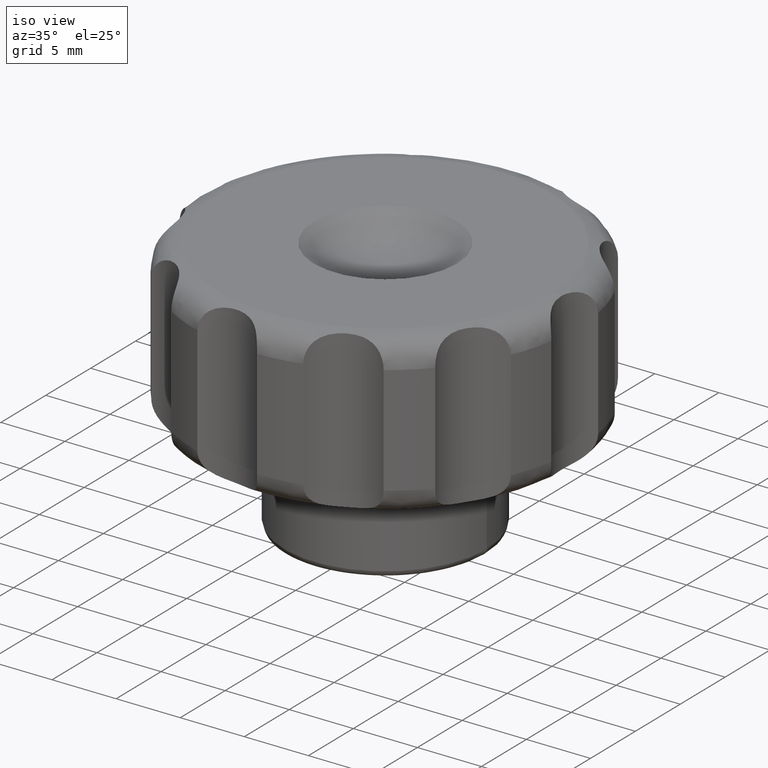
[diagram: clean part render]
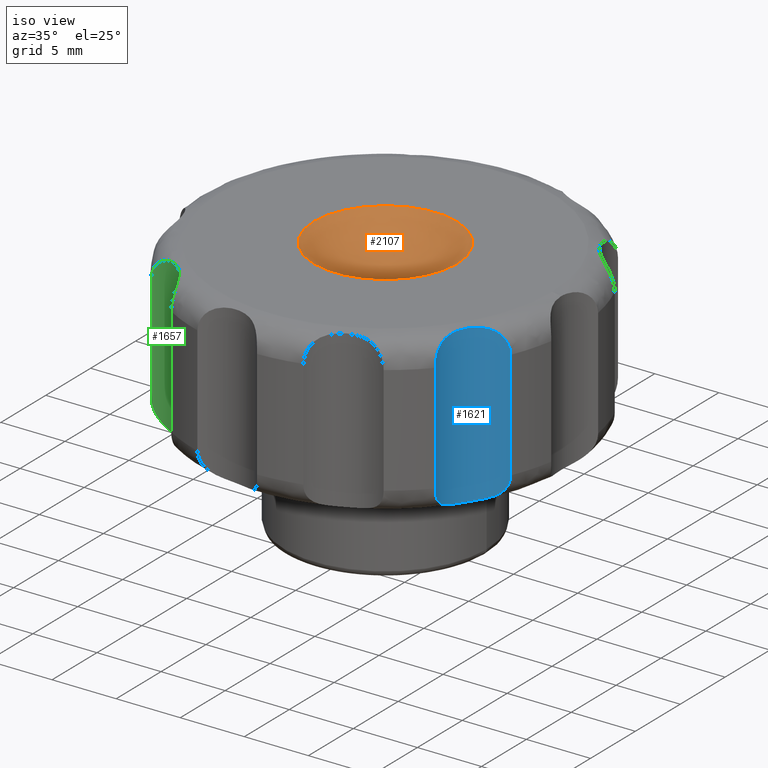
[diagram: same view with three faces highlighted in distinct colors, each labeled with its STEP entity id]
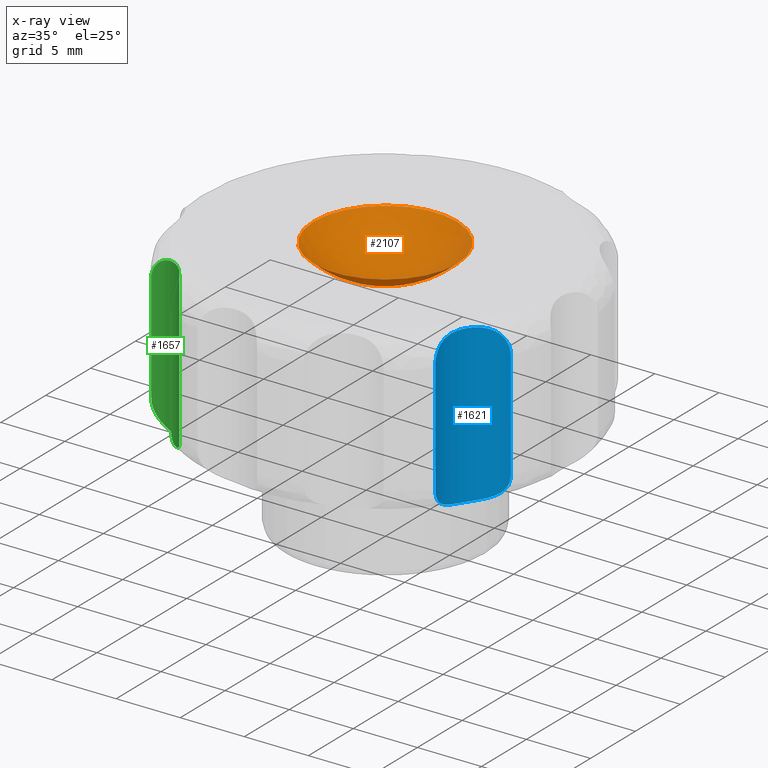
[diagram: x-ray of the same camera — body ghosted, the three highlighted faces saturated]
A machine part, iso view with three faces highlighted in distinct colors.
The next image is the same camera in x-ray (body ghosted, the three faces saturated) — at least one of them is partly hidden behind the body in this view.
Their STEP definitions:

[orange] entity #2107 — the highlighted face is a freeform B-spline surface patch.
#535=CARTESIAN_POINT('',(-5.580343384734768,0.0,12.500000000000000));
#536=VERTEX_POINT('',#535);
#537=CARTESIAN_POINT('',(5.580343384734768,0.0,12.500000000000000));
#538=VERTEX_POINT('',#537);
#539=CARTESIAN_POINT('',(0.0,0.0,12.500000000000000));
#540=DIRECTION('',(0.0,0.0,1.0));
#541=DIRECTION('',(1.0,0.0,0.0));
#542=AXIS2_PLACEMENT_3D('',#539,#540,#541);
#543=CIRCLE('',#542,5.580343384734768);
#544=EDGE_CURVE('',#536,#538,#543,.T.);
#546=CARTESIAN_POINT('',(0.0,0.0,12.500000000000000));
#547=DIRECTION('',(0.0,0.0,1.0));
#548=DIRECTION('',(1.0,0.0,0.0));
#549=AXIS2_PLACEMENT_3D('',#546,#547,#548);
#550=CIRCLE('',#549,5.580343384734768);
#551=EDGE_CURVE('',#538,#536,#550,.T.);
#2058=CARTESIAN_POINT('',(0.0,0.0,10.232343997741843));
#2059=CARTESIAN_POINT('',(0.0,0.0,10.232343997741843));
#2060=CARTESIAN_POINT('',(0.0,0.0,10.232343997741843));
#2061=CARTESIAN_POINT('',(0.0,0.0,10.232343997741843));
#2062=CARTESIAN_POINT('',(0.0,0.0,10.232343997741843));
#2063=CARTESIAN_POINT('',(0.0,0.0,10.232343997741843));
#2064=CARTESIAN_POINT('',(0.0,0.0,10.232343997741843));
#2065=CARTESIAN_POINT('',(0.0,0.0,10.232343997741843));
#2066=CARTESIAN_POINT('',(0.0,0.0,10.232343997741843));
#2067=CARTESIAN_POINT('',(3.250919659910518,0.0,10.232343997741843));
#2068=CARTESIAN_POINT('',(3.250919659910518,3.250919659910518,10.232343997741843));
#2069=CARTESIAN_POINT('',(0.0,3.250919659910518,10.232343997741843));
#2070=CARTESIAN_POINT('',(-3.250919659910518,3.250919659910518,10.232343997741843));
#2071=CARTESIAN_POINT('',(-3.250919659910518,0.0,10.232343997741843));
#2072=CARTESIAN_POINT('',(-3.250919659910518,-3.250919659910518,10.232343997741843));
#2073=CARTESIAN_POINT('',(0.0,-3.250919659910518,10.232343997741843));
#2074=CARTESIAN_POINT('',(3.250919659910518,-3.250919659910518,10.232343997741843));
#2075=CARTESIAN_POINT('',(3.250919659910518,0.0,10.232343997741843));
#2076=CARTESIAN_POINT('',(5.580343384827471,0.0,12.500000000090246));
#2077=CARTESIAN_POINT('',(5.580343384827471,5.580343384827471,12.500000000090246));
#2078=CARTESIAN_POINT('',(0.0,5.580343384827471,12.500000000090246));
#2079=CARTESIAN_POINT('',(-5.580343384827471,5.580343384827471,12.500000000090246));
#2080=CARTESIAN_POINT('',(-5.580343384827471,0.0,12.500000000090246));
#2081=CARTESIAN_POINT('',(-5.580343384827471,-5.580343384827471,12.500000000090246));
#2082=CARTESIAN_POINT('',(0.0,-5.580343384827471,12.500000000090246));
#2083=CARTESIAN_POINT('',(5.580343384827471,-5.580343384827471,12.500000000090246));
#2084=CARTESIAN_POINT('',(5.580343384827471,0.0,12.500000000090246));
#2092=(BOUNDED_SURFACE()B_SPLINE_SURFACE(2,2,((#2058,#2067,#2076),(#2059,#2068,#2077),(#2060,#2069,#2078),(#2061,#2070,#2079),(#2062,#2071,#2080),(#2063,#2072,#2081),(#2064,#2073,#2082),(#2065,#2074,#2083),(#2066,#2075,#2084)),.UNSPECIFIED.,.T.,.F.,.U.)B_SPLINE_SURFACE_WITH_KNOTS((3,2,2,2,3),(3,3),(0.0,0.250000000000000,0.500000000000000,0.750000000000000,1.0),(0.0,1.0),.UNSPECIFIED.)GEOMETRIC_REPRESENTATION_ITEM()RATIONAL_B_SPLINE_SURFACE(((1.0,0.926429435981621,1.0),(0.707106781186548,0.655084536473433,0.707106781186548),(1.0,0.926429435981621,1.0),(0.707106781186548,0.655084536473433,0.707106781186548),(1.0,0.926429435981621,1.0),(0.707106781186548,0.655084536473433,0.707106781186548),(1.0,0.926429435981621,1.0),(0.707106781186548,0.655084536473433,0.707106781186548),(1.0,0.926429435981621,1.0)))REPRESENTATION_ITEM('')SURFACE());
#2093=ORIENTED_EDGE('',*,*,#551,.T.);
#2094=ORIENTED_EDGE('',*,*,#544,.T.);
#2095=CARTESIAN_POINT('',(0.0,0.0,10.232343997741843));
#2096=VERTEX_POINT('',#2095);
#2097=CARTESIAN_POINT('',(0.0,0.0,18.232343997741843));
#2098=DIRECTION('',(0.0,-1.0,0.0));
#2099=DIRECTION('',(0.0,0.0,-1.0));
#2100=AXIS2_PLACEMENT_3D('',#2097,#2098,#2099);
#2101=CIRCLE('',#2100,8.0);
#2102=EDGE_CURVE('',#2096,#538,#2101,.T.);
#2103=ORIENTED_EDGE('',*,*,#2102,.F.);
#2104=ORIENTED_EDGE('',*,*,#2102,.T.);
#2105=EDGE_LOOP('',(#2093,#2094,#2103,#2104));
#2106=FACE_OUTER_BOUND('',#2105,.T.);
#2107=ADVANCED_FACE('',(#2106),#2092,.F.);

[blue] entity #1621 — the highlighted cylindrical surface (partial cylindrical patch) has radius 3.705 mm, axis along (0, 0, 1).
#105=CARTESIAN_POINT('',(13.837996830716065,-5.788768756228933,10.500000000000000));
#106=VERTEX_POINT('',#105);
#114=CARTESIAN_POINT('',(13.837996830716065,-5.788768756228933,2.0));
#115=VERTEX_POINT('',#114);
#116=CARTESIAN_POINT('',(13.837996830716065,-5.788768756228940,10.500000000000000));
#117=DIRECTION('',(0.0,0.0,-1.0));
#118=VECTOR('',#117,8.500000000000000);
#119=LINE('',#116,#118);
#120=EDGE_CURVE('',#106,#115,#119,.T.);
#475=CARTESIAN_POINT('',(11.014160907726406,-10.182743220699976,2.0));
#476=VERTEX_POINT('',#475);
#484=CARTESIAN_POINT('',(11.014160907726406,-10.182743220699976,10.500000000000000));
#485=VERTEX_POINT('',#484);
#486=CARTESIAN_POINT('',(11.014160907726406,-10.182743220699976,2.0));
#487=DIRECTION('',(0.0,0.0,1.0));
#488=VECTOR('',#487,8.500000000000000);
#489=LINE('',#486,#488);
#490=EDGE_CURVE('',#476,#485,#489,.T.);
#1033=CARTESIAN_POINT('',(13.837996830716065,-5.788768756228947,10.500000000000000));
#1034=CARTESIAN_POINT('',(13.837996830716065,-5.788768756228947,10.608893188010322));
#1035=CARTESIAN_POINT('',(13.809118245454030,-5.795082271900739,10.904788491721305));
#1036=CARTESIAN_POINT('',(13.649266491374412,-5.832437947276674,11.325462859620893));
#1037=CARTESIAN_POINT('',(13.378092479682380,-5.918012064753910,11.678183797559900));
#1038=CARTESIAN_POINT('',(13.058600987836996,-6.048038525069011,11.951301383291483));
#1039=CARTESIAN_POINT('',(12.675800468812213,-6.249010709866369,12.161143904376690));
#1040=CARTESIAN_POINT('',(12.252832021880778,-6.553893073651302,12.294019155590128));
#1041=CARTESIAN_POINT('',(11.833614734443984,-6.959656018080835,12.365664869028034));
#1042=CARTESIAN_POINT('',(11.456536722405716,-7.465029800168217,12.384611776371797));
#1043=CARTESIAN_POINT('',(11.175925591182725,-8.037736030128016,12.351808763337624));
#1044=CARTESIAN_POINT('',(11.014642441442689,-8.577230724803471,12.261161691548574));
#1045=CARTESIAN_POINT('',(10.936996603541061,-9.069494011819806,12.106441794127660));
#1046=CARTESIAN_POINT('',(10.927309526972493,-9.451918406476068,11.894547045245222));
#1047=CARTESIAN_POINT('',(10.946735428282288,-9.769322806529388,11.613407753463186));
#1048=CARTESIAN_POINT('',(10.979135604415795,-10.010139525836124,11.286213597984007));
#1049=CARTESIAN_POINT('',(11.008203968294062,-10.155364225593878,10.885268017151375));
#1050=CARTESIAN_POINT('',(11.014160907726406,-10.182743220699976,10.611260724372958));
#1051=CARTESIAN_POINT('',(11.014160907726406,-10.182743220699976,10.500000000000000));
#1052=B_SPLINE_CURVE_WITH_KNOTS('',3,(#1033,#1034,#1035,#1036,#1037,#1038,#1039,#1040,#1041,#1042,#1043,#1044,#1045,#1046,#1047,#1048,#1049,#1050,#1051),.UNSPECIFIED.,.F.,.U.,(4,1,1,1,1,1,1,1,1,1,1,1,1,1,1,1,4),(0.0,0.327210130096219,0.886575828973670,1.335367345874920,1.673984426771012,2.200227040267084,2.764908836031083,3.278203970736751,3.957565551258760,4.647581944190122,5.183530552735045,5.661164851905375,6.205228636610077,6.482725803799315,6.930127592519493,7.416761489628878,7.751108947127835),.UNSPECIFIED.);
#1053=EDGE_CURVE('',#106,#485,#1052,.T.);
#1348=CARTESIAN_POINT('',(13.837996830716065,-5.788768756228947,2.0));
#1349=CARTESIAN_POINT('',(13.837996830716065,-5.788768756228947,1.891106811989678));
#1350=CARTESIAN_POINT('',(13.809118245454059,-5.795082271900768,1.595211508278690));
#1351=CARTESIAN_POINT('',(13.649266491374448,-5.832437947276688,1.174537140379110));
#1352=CARTESIAN_POINT('',(13.378092479682373,-5.918012064753910,0.821816202440106));
#1353=CARTESIAN_POINT('',(13.058600987836982,-6.048038525069011,0.548698616708488));
#1354=CARTESIAN_POINT('',(12.675800468812142,-6.249010709866397,0.338856095623296));
#1355=CARTESIAN_POINT('',(12.252832021880707,-6.553893073651373,0.205980844409853));
#1356=CARTESIAN_POINT('',(11.833614734443898,-6.959656018080921,0.134335130971961));
#1357=CARTESIAN_POINT('',(11.456536722405652,-7.465029800168338,0.115388223628209));
#1358=CARTESIAN_POINT('',(11.175925591182676,-8.037736030128173,0.148191236662382));
#1359=CARTESIAN_POINT('',(11.014642441442646,-8.577230724803634,0.238838308451470));
#1360=CARTESIAN_POINT('',(10.936996603541033,-9.069494011819970,0.393558205872405));
#1361=CARTESIAN_POINT('',(10.927309526972479,-9.451918406476196,0.605452954754885));
#1362=CARTESIAN_POINT('',(10.946735428282302,-9.769322806529509,0.886592246536941));
#1363=CARTESIAN_POINT('',(10.979135604415802,-10.010139525836173,1.213786402016128));
#1364=CARTESIAN_POINT('',(11.008203968294062,-10.155364225593907,1.614731982848707));
#1365=CARTESIAN_POINT('',(11.014160907726406,-10.182743220699976,1.888739275627082));
#1366=CARTESIAN_POINT('',(11.014160907726406,-10.182743220699976,2.0));
#1367=B_SPLINE_CURVE_WITH_KNOTS('',3,(#1348,#1349,#1350,#1351,#1352,#1353,#1354,#1355,#1356,#1357,#1358,#1359,#1360,#1361,#1362,#1363,#1364,#1365,#1366),.UNSPECIFIED.,.F.,.U.,(4,1,1,1,1,1,1,1,1,1,1,1,1,1,1,1,4),(0.0,0.327210130096221,0.886575828973672,1.335367345874914,1.673984426770991,2.200227040267181,2.764908836031204,3.278203970736851,3.957565551258889,4.647581944190296,5.183530552735221,5.661164851905535,6.205228636610255,6.482725803799480,6.930127592519630,7.416761489628995,7.751108947127830),.UNSPECIFIED.);
#1368=EDGE_CURVE('',#115,#476,#1367,.T.);
#1610=CARTESIAN_POINT('',(14.636957833929273,-9.406601624324630,12.500000000000000));
#1611=DIRECTION('',(0.0,0.0,1.0));
#1612=DIRECTION('',(0.841253532831181,-0.540640817455598,0.0));
#1613=AXIS2_PLACEMENT_3D('',#1610,#1611,#1612);
#1614=CYLINDRICAL_SURFACE('',#1613,3.705003825386556);
#1615=ORIENTED_EDGE('',*,*,#1053,.T.);
#1616=ORIENTED_EDGE('',*,*,#490,.F.);
#1617=ORIENTED_EDGE('',*,*,#1368,.F.);
#1618=ORIENTED_EDGE('',*,*,#120,.F.);
#1619=EDGE_LOOP('',(#1615,#1616,#1617,#1618));
#1620=FACE_OUTER_BOUND('',#1619,.T.);
#1621=ADVANCED_FACE('',(#1620),#1614,.F.);

[green] entity #1657 — the highlighted cylindrical surface (partial cylindrical patch) has radius 3.705 mm, axis along (0, 0, 1).
#349=CARTESIAN_POINT('',(-11.646576105315582,-9.452897176162033,2.0));
#350=VERTEX_POINT('',#349);
#358=CARTESIAN_POINT('',(-11.646576105315582,-9.452897176162033,10.500000000000000));
#359=VERTEX_POINT('',#358);
#360=CARTESIAN_POINT('',(-11.646576105315582,-9.452897176162033,2.0));
#361=DIRECTION('',(0.0,0.0,1.0));
#362=VECTOR('',#361,8.500000000000000);
#363=LINE('',#360,#362);
#364=EDGE_CURVE('',#350,#359,#363,.T.);
#389=CARTESIAN_POINT('',(-7.699199717995420,-12.873318286378975,2.0));
#390=VERTEX_POINT('',#389);
#408=CARTESIAN_POINT('',(-7.699199717995420,-12.873318286378975,10.500000000000000));
#409=VERTEX_POINT('',#408);
#417=CARTESIAN_POINT('',(-7.699199717995420,-12.873318286378975,10.500000000000000));
#418=DIRECTION('',(0.0,0.0,-1.0));
#419=VECTOR('',#418,8.500000000000000);
#420=LINE('',#417,#419);
#421=EDGE_CURVE('',#409,#390,#420,.T.);
#964=CARTESIAN_POINT('',(-7.699199717995420,-12.873318286378975,10.500000000000000));
#965=CARTESIAN_POINT('',(-7.699199717995420,-12.873318286378975,10.608893188010319));
#966=CARTESIAN_POINT('',(-7.701339119989996,-12.843835136513533,10.904788491720938));
#967=CARTESIAN_POINT('',(-7.715565291923070,-12.680294175904457,11.325462859622784));
#968=CARTESIAN_POINT('',(-7.761676302655381,-12.399701857958952,11.678183797554873));
#969=CARTESIAN_POINT('',(-7.844910901105813,-12.064957634113114,11.951301383354235));
#970=CARTESIAN_POINT('',(-7.989359284954155,-11.657452148282104,12.161143904344769));
#971=CARTESIAN_POINT('',(-8.230943699790664,-11.195399626017235,12.294019155540452));
#972=CARTESIAN_POINT('',(-8.572915722213516,-10.722703278103687,12.365664869100087));
#973=CARTESIAN_POINT('',(-9.019481731889165,-10.277541188283024,12.384611776372754));
#974=CARTESIAN_POINT('',(-9.546423510972169,-9.918281679158810,12.351808763227762));
#975=CARTESIAN_POINT('',(-10.057473942391297,-9.681862059243542,12.261161691236596));
#976=CARTESIAN_POINT('',(-10.533676544061308,-9.534950174145038,12.106441793558895));
#977=CARTESIAN_POINT('',(-10.910829794858032,-9.470937032338448,11.894547044457944));
#978=CARTESIAN_POINT('',(-11.227768069491276,-9.444993850229210,11.613407752533139));
#979=CARTESIAN_POINT('',(-11.470744647372179,-9.442792446874925,11.286213596941414));
#980=CARTESIAN_POINT('',(-11.618628028163741,-9.450897307055286,10.885268016396338));
#981=CARTESIAN_POINT('',(-11.646576105315582,-9.452897176162026,10.611260724001649));
#982=CARTESIAN_POINT('',(-11.646576105315582,-9.452897176162026,10.500000000000000));
#983=B_SPLINE_CURVE_WITH_KNOTS('',3,(#964,#965,#966,#967,#968,#969,#970,#971,#972,#973,#974,#975,#976,#977,#978,#979,#980,#981,#982),.UNSPECIFIED.,.F.,.U.,(4,1,1,1,1,1,1,1,1,1,1,1,1,1,1,1,4),(0.0,0.327210130096209,0.886575828973601,1.335367345874837,1.673984426771006,2.200227040488035,2.764908836383357,3.278203970732847,3.957565552274580,4.647581945503808,5.183530554234145,5.661164853426398,6.205228637948132,6.482725805030789,6.930127593657160,7.416761490743558,7.751108947122744),.UNSPECIFIED.);
#984=EDGE_CURVE('',#409,#359,#983,.T.);
#1417=CARTESIAN_POINT('',(-7.699199717995420,-12.873318286378975,2.0));
#1418=CARTESIAN_POINT('',(-7.699199717995420,-12.873318286378975,1.891106811989681));
#1419=CARTESIAN_POINT('',(-7.701339119989996,-12.843835136513526,1.595211508279061));
#1420=CARTESIAN_POINT('',(-7.715565291923085,-12.680294175904450,1.174537140377212));
#1421=CARTESIAN_POINT('',(-7.761676302655367,-12.399701857958966,0.821816202445128));
#1422=CARTESIAN_POINT('',(-7.844910901105813,-12.064957634113114,0.548698616645764));
#1423=CARTESIAN_POINT('',(-7.989359284954134,-11.657452148282125,0.338856095655229));
#1424=CARTESIAN_POINT('',(-8.230943699790679,-11.195399626017235,0.205980844459551));
#1425=CARTESIAN_POINT('',(-8.572915722213509,-10.722703278103687,0.134335130899908));
#1426=CARTESIAN_POINT('',(-9.019481731889165,-10.277541188283024,0.115388223627253));
#1427=CARTESIAN_POINT('',(-9.546423510972169,-9.918281679158810,0.148191236772233));
#1428=CARTESIAN_POINT('',(-10.057473942391297,-9.681862059243542,0.238838308763404));
#1429=CARTESIAN_POINT('',(-10.533676544061308,-9.534950174145038,0.393558206441108));
#1430=CARTESIAN_POINT('',(-10.910829794858032,-9.470937032338448,0.605452955542056));
#1431=CARTESIAN_POINT('',(-11.227768069491276,-9.444993850229210,0.886592247466862));
#1432=CARTESIAN_POINT('',(-11.470744647372179,-9.442792446874925,1.213786403058589));
#1433=CARTESIAN_POINT('',(-11.618628028163741,-9.450897307055286,1.614731983603660));
#1434=CARTESIAN_POINT('',(-11.646576105315582,-9.452897176162026,1.888739275998351));
#1435=CARTESIAN_POINT('',(-11.646576105315582,-9.452897176162026,2.0));
#1436=B_SPLINE_CURVE_WITH_KNOTS('',3,(#1417,#1418,#1419,#1420,#1421,#1422,#1423,#1424,#1425,#1426,#1427,#1428,#1429,#1430,#1431,#1432,#1433,#1434,#1435),.UNSPECIFIED.,.F.,.U.,(4,1,1,1,1,1,1,1,1,1,1,1,1,1,1,1,4),(0.0,0.327210130096211,0.886575828973604,1.335367345874837,1.673984426771007,2.200227040488035,2.764908836383357,3.278203970732847,3.957565552274580,4.647581945503808,5.183530554234145,5.661164853426398,6.205228637948132,6.482725805030789,6.930127593657160,7.416761490743558,7.751108947122744),.UNSPECIFIED.);
#1437=EDGE_CURVE('',#390,#350,#1436,.T.);
#1646=CARTESIAN_POINT('',(-11.393912269937090,-13.149275719063297,12.500000000000000));
#1647=DIRECTION('',(0.0,0.0,1.0));
#1648=DIRECTION('',(-0.654860733945285,-0.755749574354258,0.0));
#1649=AXIS2_PLACEMENT_3D('',#1646,#1647,#1648);
#1650=CYLINDRICAL_SURFACE('',#1649,3.705003825386556);
#1651=ORIENTED_EDGE('',*,*,#984,.T.);
#1652=ORIENTED_EDGE('',*,*,#364,.F.);
#1653=ORIENTED_EDGE('',*,*,#1437,.F.);
#1654=ORIENTED_EDGE('',*,*,#421,.F.);
#1655=EDGE_LOOP('',(#1651,#1652,#1653,#1654));
#1656=FACE_OUTER_BOUND('',#1655,.T.);
#1657=ADVANCED_FACE('',(#1656),#1650,.F.);